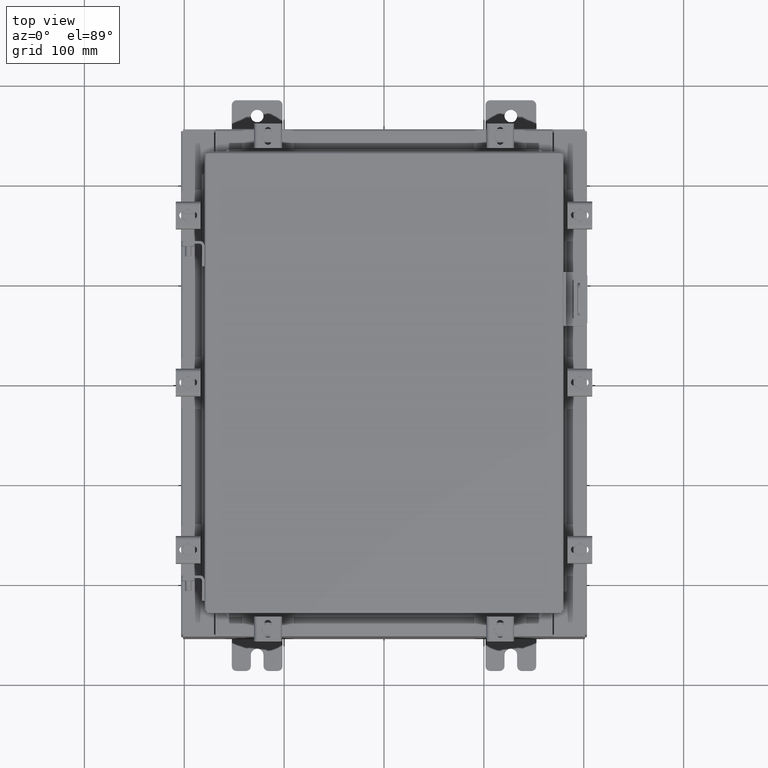
[diagram: clean part render]
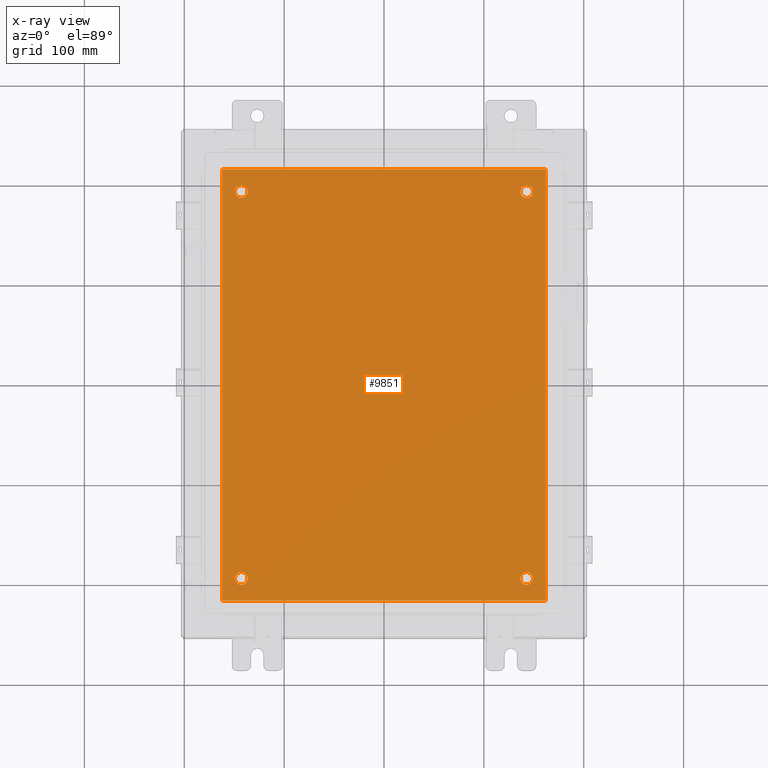
[diagram: x-ray — body ghosted, one internal face saturated and labeled with its STEP entity id]
A machine part, top view, then the same camera in x-ray: the body is ghosted and one INTERNAL B-rep face — a face not visible from any outside direction — is saturated and labeled: STEP entity #9851.
In plain terms, the highlighted planar face has unit normal (0, 0, -1).
Its self-contained STEP definition (entity closure, byte-faithful):
#94 = EDGE_LOOP ( 'NONE', ( #9382, #4983 ) ) ;
#203 = CIRCLE ( 'NONE', #13095, 0.2499999999999998100 ) ;
#373 = VERTEX_POINT ( 'NONE', #10531 ) ;
#1026 = CARTESIAN_POINT ( 'NONE',  ( -5.875000000000000000, 7.625000000000001800, -0.1039999999999999800 ) ) ;
#1077 = CARTESIAN_POINT ( 'NONE',  ( 5.625000000000000000, 7.625000000000002700, -0.1039999999999999800 ) ) ;
#1541 = DIRECTION ( 'NONE',  ( -1.000000000000000000, 0.0000000000000000000, 0.0000000000000000000 ) ) ;
#1642 = ORIENTED_EDGE ( 'NONE', *, *, #11608, .F. ) ;
#1655 = EDGE_LOOP ( 'NONE', ( #17486, #15391 ) ) ;
#1739 = VECTOR ( 'NONE', #3592, 39.37007874015748100 ) ;
#2103 = AXIS2_PLACEMENT_3D ( 'NONE', #22352, #11895, #1541 ) ;
#2301 = DIRECTION ( 'NONE',  ( -1.000000000000000000, 0.0000000000000000000, -0.0000000000000000000 ) ) ;
#2831 = DIRECTION ( 'NONE',  ( -1.000000000000000000, 0.0000000000000000000, 0.0000000000000000000 ) ) ;
#2881 = VECTOR ( 'NONE', #20400, 39.37007874015748100 ) ;
#2993 = CARTESIAN_POINT ( 'NONE',  ( -5.625000000000000000, -7.625000000000001800, -0.1039999999999999800 ) ) ;
#3155 = VERTEX_POINT ( 'NONE', #8869 ) ;
#3391 = VECTOR ( 'NONE', #7566, 39.37007874015748100 ) ;
#3517 = DIRECTION ( 'NONE',  ( -0.0000000000000000000, -0.0000000000000000000, 1.000000000000000000 ) ) ;
#3582 = CIRCLE ( 'NONE', #9153, 0.2499999999999987000 ) ;
#3592 = DIRECTION ( 'NONE',  ( 0.0000000000000000000, 1.000000000000000000, 0.0000000000000000000 ) ) ;
#3753 = EDGE_CURVE ( 'NONE', #11383, #373, #17006, .T. ) ;
#3804 = VERTEX_POINT ( 'NONE', #6779 ) ;
#4098 = CARTESIAN_POINT ( 'NONE',  ( 6.383000000000000900, -8.499999999999998200, -0.1039999999999999800 ) ) ;
#4410 = VERTEX_POINT ( 'NONE', #11553 ) ;
#4515 = AXIS2_PLACEMENT_3D ( 'NONE', #5657, #12688, #2301 ) ;
#4566 = CARTESIAN_POINT ( 'NONE',  ( 5.875000000000003600, -7.625000000000000900, -0.1039999999999999800 ) ) ;
#4598 = FACE_OUTER_BOUND ( 'NONE', #19744, .T. ) ;
#4735 = DIRECTION ( 'NONE',  ( -1.000000000000000000, 0.0000000000000000000, 0.0000000000000000000 ) ) ;
#4887 = DIRECTION ( 'NONE',  ( -0.0000000000000000000, -0.0000000000000000000, 1.000000000000000000 ) ) ;
#4893 = CIRCLE ( 'NONE', #21874, 0.2499999999999998100 ) ;
#4973 = DIRECTION ( 'NONE',  ( -1.000000000000000000, -0.0000000000000000000, -0.0000000000000000000 ) ) ;
#4983 = ORIENTED_EDGE ( 'NONE', *, *, #16873, .T. ) ;
#5482 = VERTEX_POINT ( 'NONE', #11598 ) ;
#5537 = ORIENTED_EDGE ( 'NONE', *, *, #7930, .T. ) ;
#5657 = CARTESIAN_POINT ( 'NONE',  ( 0.0000000000000000000, 0.0000000000000000000, -0.1039999999999999800 ) ) ;
#5687 = ORIENTED_EDGE ( 'NONE', *, *, #10847, .F. ) ;
#6423 = CARTESIAN_POINT ( 'NONE',  ( -6.499999999999998200, -8.499999999999998200, -0.1039999999999999800 ) ) ;
#6631 = EDGE_CURVE ( 'NONE', #13092, #3155, #13133, .T. ) ;
#6750 = AXIS2_PLACEMENT_3D ( 'NONE', #9394, #21657, #11145 ) ;
#6779 = CARTESIAN_POINT ( 'NONE',  ( 6.383000000000000900, 8.500000000000000000, -0.1039999999999999800 ) ) ;
#6871 = LINE ( 'NONE', #16326, #3391 ) ;
#7116 = EDGE_LOOP ( 'NONE', ( #5537, #16148 ) ) ;
#7301 = DIRECTION ( 'NONE',  ( -0.0000000000000000000, -0.0000000000000000000, 1.000000000000000000 ) ) ;
#7560 = VERTEX_POINT ( 'NONE', #11268 ) ;
#7566 = DIRECTION ( 'NONE',  ( 0.0000000000000000000, -1.000000000000000000, 0.0000000000000000000 ) ) ;
#7690 = LINE ( 'NONE', #13730, #16486 ) ;
#7930 = EDGE_CURVE ( 'NONE', #11416, #21051, #8147, .T. ) ;
#8147 = CIRCLE ( 'NONE', #9966, 0.2499999999999987000 ) ;
#8626 = EDGE_CURVE ( 'NONE', #373, #11383, #4893, .T. ) ;
#8869 = CARTESIAN_POINT ( 'NONE',  ( -5.875000000000000000, -7.625000000000001800, -0.1039999999999999800 ) ) ;
#9153 = AXIS2_PLACEMENT_3D ( 'NONE', #13945, #3517, #15723 ) ;
#9175 = FACE_BOUND ( 'NONE', #12399, .T. ) ;
#9207 = EDGE_CURVE ( 'NONE', #7560, #4410, #14138, .T. ) ;
#9382 = ORIENTED_EDGE ( 'NONE', *, *, #6631, .T. ) ;
#9394 = CARTESIAN_POINT ( 'NONE',  ( 5.625000000000000000, 7.625000000000002700, -0.1039999999999999800 ) ) ;
#9413 = FACE_BOUND ( 'NONE', #7116, .T. ) ;
#9530 = DIRECTION ( 'NONE',  ( -0.0000000000000000000, -0.0000000000000000000, 1.000000000000000000 ) ) ;
#9851 = ADVANCED_FACE ( 'NONE', ( #18536, #9413, #13871, #9175, #4598 ), #17912, .T. ) ;
#9966 = AXIS2_PLACEMENT_3D ( 'NONE', #17819, #7301, #19544 ) ;
#10141 = EDGE_CURVE ( 'NONE', #5482, #19236, #12105, .T. ) ;
#10531 = CARTESIAN_POINT ( 'NONE',  ( -5.375000000000000900, 7.625000000000001800, -0.1039999999999999800 ) ) ;
#10847 = EDGE_CURVE ( 'NONE', #3804, #19446, #7690, .T. ) ;
#11109 = EDGE_CURVE ( 'NONE', #19446, #5482, #6871, .T. ) ;
#11145 = DIRECTION ( 'NONE',  ( -1.000000000000000000, 0.0000000000000000000, 0.0000000000000000000 ) ) ;
#11268 = CARTESIAN_POINT ( 'NONE',  ( 5.874999999999999100, 7.625000000000002700, -0.1039999999999999800 ) ) ;
#11383 = VERTEX_POINT ( 'NONE', #1026 ) ;
#11416 = VERTEX_POINT ( 'NONE', #4566 ) ;
#11553 = CARTESIAN_POINT ( 'NONE',  ( 5.375000000000001800, 7.625000000000002700, -0.1039999999999999800 ) ) ;
#11598 = CARTESIAN_POINT ( 'NONE',  ( -6.382999999999998200, -8.499999999999998200, -0.1039999999999998100 ) ) ;
#11608 = EDGE_CURVE ( 'NONE', #19236, #3804, #19698, .T. ) ;
#11633 = AXIS2_PLACEMENT_3D ( 'NONE', #1077, #13232, #2831 ) ;
#11895 = DIRECTION ( 'NONE',  ( -0.0000000000000000000, -0.0000000000000000000, 1.000000000000000000 ) ) ;
#12105 = LINE ( 'NONE', #6423, #2881 ) ;
#12180 = ORIENTED_EDGE ( 'NONE', *, *, #8626, .T. ) ;
#12399 = EDGE_LOOP ( 'NONE', ( #12180, #14179 ) ) ;
#12688 = DIRECTION ( 'NONE',  ( 0.0000000000000000000, 0.0000000000000000000, -1.000000000000000000 ) ) ;
#13092 = VERTEX_POINT ( 'NONE', #18755 ) ;
#13095 = AXIS2_PLACEMENT_3D ( 'NONE', #20035, #9530, #21767 ) ;
#13133 = CIRCLE ( 'NONE', #19221, 0.2499999999999998100 ) ;
#13232 = DIRECTION ( 'NONE',  ( -0.0000000000000000000, -0.0000000000000000000, 1.000000000000000000 ) ) ;
#13366 = ORIENTED_EDGE ( 'NONE', *, *, #11109, .F. ) ;
#13730 = CARTESIAN_POINT ( 'NONE',  ( -6.499999999999998200, 8.500000000000000000, -0.1039999999999999800 ) ) ;
#13871 = FACE_BOUND ( 'NONE', #1655, .T. ) ;
#13945 = CARTESIAN_POINT ( 'NONE',  ( 5.625000000000004400, -7.625000000000000900, -0.1039999999999999800 ) ) ;
#14020 = CARTESIAN_POINT ( 'NONE',  ( 6.383000000000002700, -8.499999999999998200, -0.1039999999999998100 ) ) ;
#14138 = CIRCLE ( 'NONE', #11633, 0.2499999999999987000 ) ;
#14179 = ORIENTED_EDGE ( 'NONE', *, *, #3753, .T. ) ;
#15198 = DIRECTION ( 'NONE',  ( -0.0000000000000000000, -0.0000000000000000000, 1.000000000000000000 ) ) ;
#15374 = CARTESIAN_POINT ( 'NONE',  ( -5.625000000000000000, 7.625000000000001800, -0.1039999999999999800 ) ) ;
#15391 = ORIENTED_EDGE ( 'NONE', *, *, #16422, .T. ) ;
#15723 = DIRECTION ( 'NONE',  ( -1.000000000000000000, 0.0000000000000000000, 0.0000000000000000000 ) ) ;
#16148 = ORIENTED_EDGE ( 'NONE', *, *, #18898, .T. ) ;
#16326 = CARTESIAN_POINT ( 'NONE',  ( -6.382999999999998200, 8.500000000000000000, -0.1039999999999998100 ) ) ;
#16422 = EDGE_CURVE ( 'NONE', #4410, #7560, #20099, .T. ) ;
#16486 = VECTOR ( 'NONE', #4973, 39.37007874015748100 ) ;
#16702 = CARTESIAN_POINT ( 'NONE',  ( -6.382999999999998200, 8.500000000000000000, -0.1039999999999998100 ) ) ;
#16873 = EDGE_CURVE ( 'NONE', #3155, #13092, #203, .T. ) ;
#17006 = CIRCLE ( 'NONE', #2103, 0.2499999999999998100 ) ;
#17137 = DIRECTION ( 'NONE',  ( -1.000000000000000000, 0.0000000000000000000, 0.0000000000000000000 ) ) ;
#17486 = ORIENTED_EDGE ( 'NONE', *, *, #9207, .T. ) ;
#17567 = CARTESIAN_POINT ( 'NONE',  ( 5.375000000000006200, -7.625000000000000900, -0.1039999999999999800 ) ) ;
#17819 = CARTESIAN_POINT ( 'NONE',  ( 5.625000000000004400, -7.625000000000000900, -0.1039999999999999800 ) ) ;
#17912 = PLANE ( 'NONE',  #4515 ) ;
#18536 = FACE_BOUND ( 'NONE', #94, .T. ) ;
#18755 = CARTESIAN_POINT ( 'NONE',  ( -5.375000000000000900, -7.625000000000001800, -0.1039999999999999800 ) ) ;
#18898 = EDGE_CURVE ( 'NONE', #21051, #11416, #3582, .T. ) ;
#19221 = AXIS2_PLACEMENT_3D ( 'NONE', #2993, #15198, #4735 ) ;
#19236 = VERTEX_POINT ( 'NONE', #4098 ) ;
#19446 = VERTEX_POINT ( 'NONE', #16702 ) ;
#19544 = DIRECTION ( 'NONE',  ( -1.000000000000000000, 0.0000000000000000000, 0.0000000000000000000 ) ) ;
#19698 = LINE ( 'NONE', #14020, #1739 ) ;
#19744 = EDGE_LOOP ( 'NONE', ( #20641, #13366, #5687, #1642 ) ) ;
#20035 = CARTESIAN_POINT ( 'NONE',  ( -5.625000000000000000, -7.625000000000001800, -0.1039999999999999800 ) ) ;
#20099 = CIRCLE ( 'NONE', #6750, 0.2499999999999987000 ) ;
#20400 = DIRECTION ( 'NONE',  ( 1.000000000000000000, 0.0000000000000000000, 0.0000000000000000000 ) ) ;
#20641 = ORIENTED_EDGE ( 'NONE', *, *, #10141, .F. ) ;
#21051 = VERTEX_POINT ( 'NONE', #17567 ) ;
#21657 = DIRECTION ( 'NONE',  ( -0.0000000000000000000, -0.0000000000000000000, 1.000000000000000000 ) ) ;
#21767 = DIRECTION ( 'NONE',  ( -1.000000000000000000, 0.0000000000000000000, 0.0000000000000000000 ) ) ;
#21874 = AXIS2_PLACEMENT_3D ( 'NONE', #15374, #4887, #17137 ) ;
#22352 = CARTESIAN_POINT ( 'NONE',  ( -5.625000000000000000, 7.625000000000001800, -0.1039999999999999800 ) ) ;